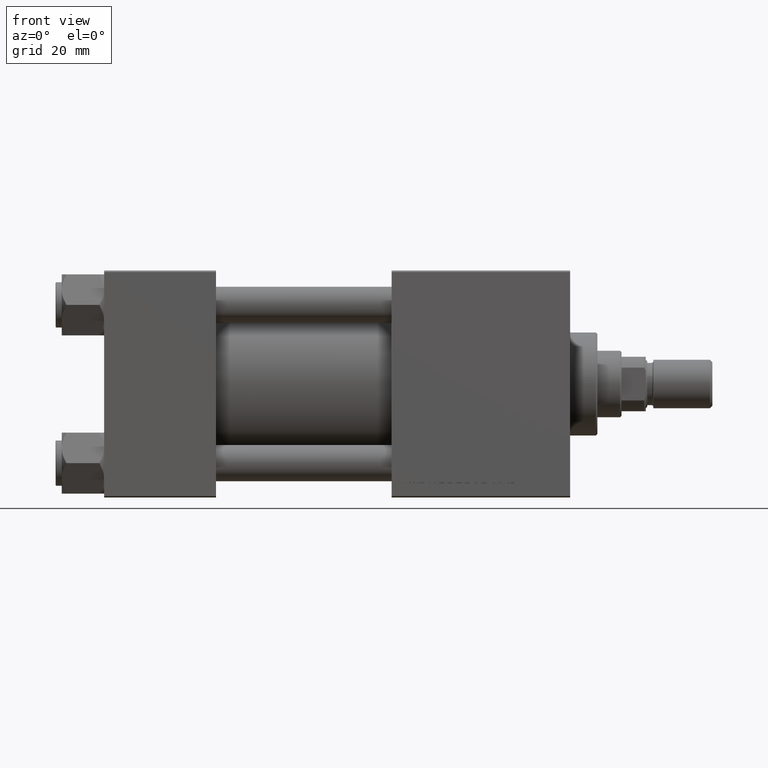
[diagram: clean part render]
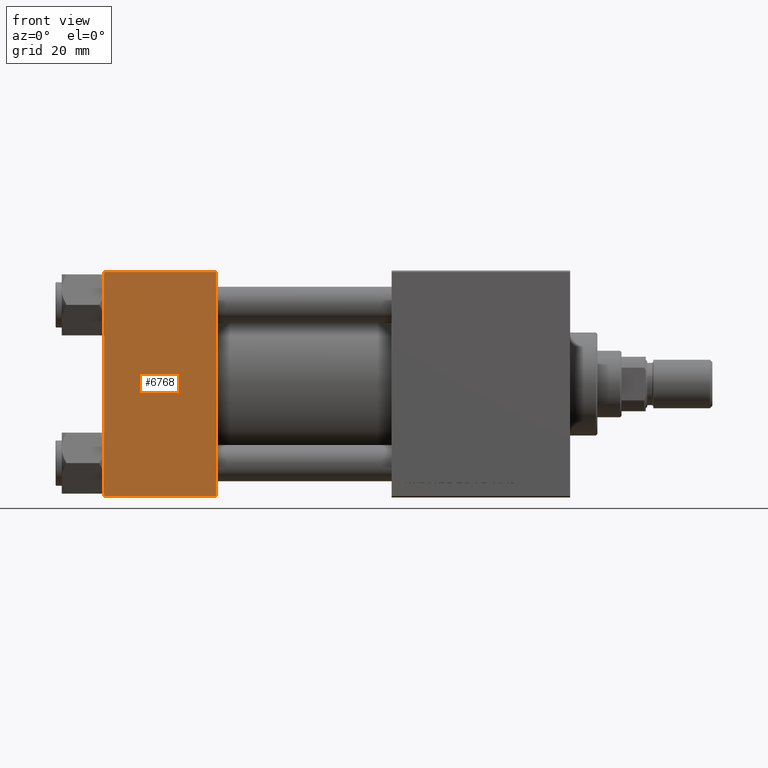
[diagram: same view with one face highlighted and labeled with its STEP entity id]
A machine part, front view. The second image highlights one B-rep face of the part: STEP entity #6768.
In plain terms, the highlighted planar face has unit normal (0, 1, 0).
Its self-contained STEP definition (entity closure, byte-faithful):
#412 = VERTEX_POINT ( 'NONE', #45369 ) ;
#1348 = EDGE_CURVE ( 'NONE', #412, #28844, #50512, .T. ) ;
#1750 = DIRECTION ( 'NONE',  ( -1.000000000000000000, 0.000000000000000000, 0.000000000000000000 ) ) ;
#2512 = CARTESIAN_POINT ( 'NONE',  ( 37.00000000000000000, -37.50000000000000711, 36.99999999999999289 ) ) ;
#5592 = LINE ( 'NONE', #2512, #18162 ) ;
#6178 = CARTESIAN_POINT ( 'NONE',  ( 37.00000000000000000, -37.50000000000000711, 37.49999999999999289 ) ) ;
#6768 = ADVANCED_FACE ( 'NONE', ( #46131 ), #11069, .F. ) ;
#9079 = CARTESIAN_POINT ( 'NONE',  ( 0.000000000000000000, -37.50000000000000711, 36.99999999999999289 ) ) ;
#10034 = LINE ( 'NONE', #6178, #26657 ) ;
#11069 = PLANE ( 'NONE',  #29297 ) ;
#12295 = EDGE_CURVE ( 'NONE', #31396, #412, #45897, .T. ) ;
#13469 = ORIENTED_EDGE ( 'NONE', *, *, #39531, .F. ) ;
#16604 = VERTEX_POINT ( 'NONE', #19829 ) ;
#18162 = VECTOR ( 'NONE', #1750, 1000.000000000000000 ) ;
#19829 = CARTESIAN_POINT ( 'NONE',  ( 37.00000000000000000, -37.50000000000000711, 36.99999999999999289 ) ) ;
#20204 = EDGE_CURVE ( 'NONE', #16604, #31396, #5592, .T. ) ;
#24979 = ORIENTED_EDGE ( 'NONE', *, *, #20204, .T. ) ;
#25933 = DIRECTION ( 'NONE',  ( 0.000000000000000000, 9.251858538542971581E-17, -1.000000000000000000 ) ) ;
#26657 = VECTOR ( 'NONE', #34074, 1000.000000000000000 ) ;
#26672 = DIRECTION ( 'NONE',  ( -0.000000000000000000, 1.000000000000000000, 9.251858538542971581E-17 ) ) ;
#28844 = VERTEX_POINT ( 'NONE', #29276 ) ;
#29276 = CARTESIAN_POINT ( 'NONE',  ( 37.00000000000000000, -37.50000000000000000, -37.00000000000003553 ) ) ;
#29297 = AXIS2_PLACEMENT_3D ( 'NONE', #37944, #26672, #38974 ) ;
#29518 = CARTESIAN_POINT ( 'NONE',  ( 0.000000000000000000, -37.50000000000000711, 37.49999999999999289 ) ) ;
#30517 = DIRECTION ( 'NONE',  ( 1.000000000000000000, 0.000000000000000000, 0.000000000000000000 ) ) ;
#31396 = VERTEX_POINT ( 'NONE', #9079 ) ;
#33180 = VECTOR ( 'NONE', #30517, 1000.000000000000000 ) ;
#34074 = DIRECTION ( 'NONE',  ( 0.000000000000000000, 9.251858538542971581E-17, -1.000000000000000000 ) ) ;
#36001 = VECTOR ( 'NONE', #25933, 1000.000000000000000 ) ;
#37909 = EDGE_LOOP ( 'NONE', ( #47977, #50046, #13469, #24979 ) ) ;
#37944 = CARTESIAN_POINT ( 'NONE',  ( 37.00000000000000000, -37.50000000000000711, 37.49999999999999289 ) ) ;
#38974 = DIRECTION ( 'NONE',  ( 0.000000000000000000, -9.251858538542971581E-17, 1.000000000000000000 ) ) ;
#39531 = EDGE_CURVE ( 'NONE', #16604, #28844, #10034, .T. ) ;
#45369 = CARTESIAN_POINT ( 'NONE',  ( 0.000000000000000000, -37.50000000000000000, -37.00000000000003553 ) ) ;
#45897 = LINE ( 'NONE', #29518, #36001 ) ;
#46131 = FACE_OUTER_BOUND ( 'NONE', #37909, .T. ) ;
#46398 = CARTESIAN_POINT ( 'NONE',  ( 37.00000000000000000, -37.50000000000000000, -37.00000000000003553 ) ) ;
#47977 = ORIENTED_EDGE ( 'NONE', *, *, #12295, .T. ) ;
#50046 = ORIENTED_EDGE ( 'NONE', *, *, #1348, .T. ) ;
#50512 = LINE ( 'NONE', #46398, #33180 ) ;